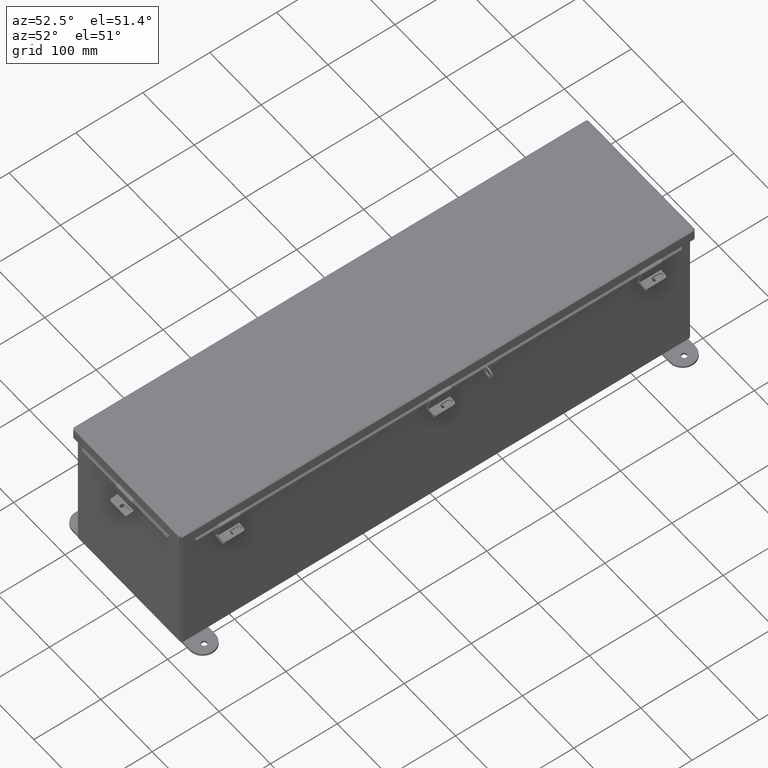
[diagram: clean part render]
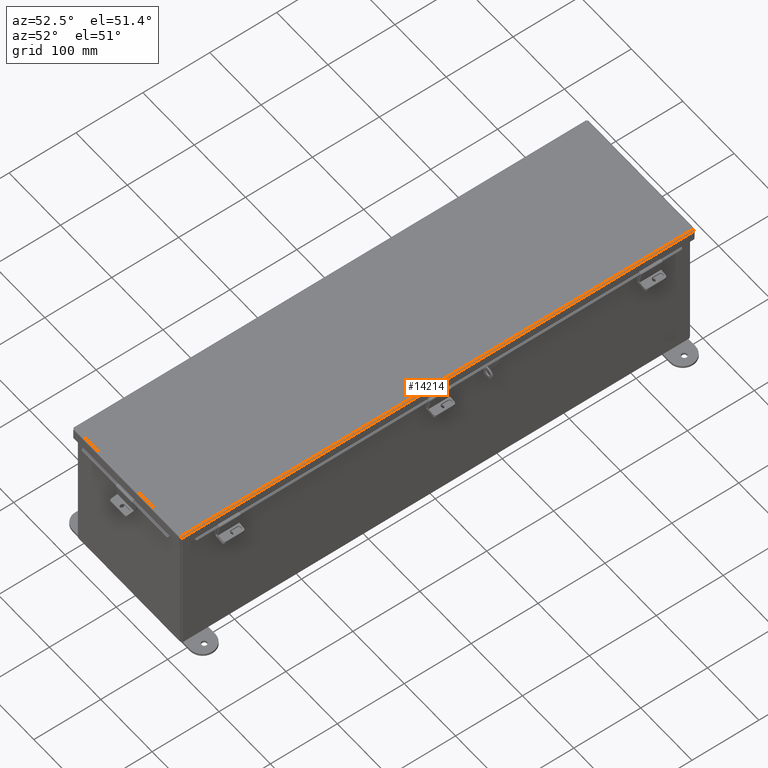
[diagram: same view with one face highlighted and labeled with its STEP entity id]
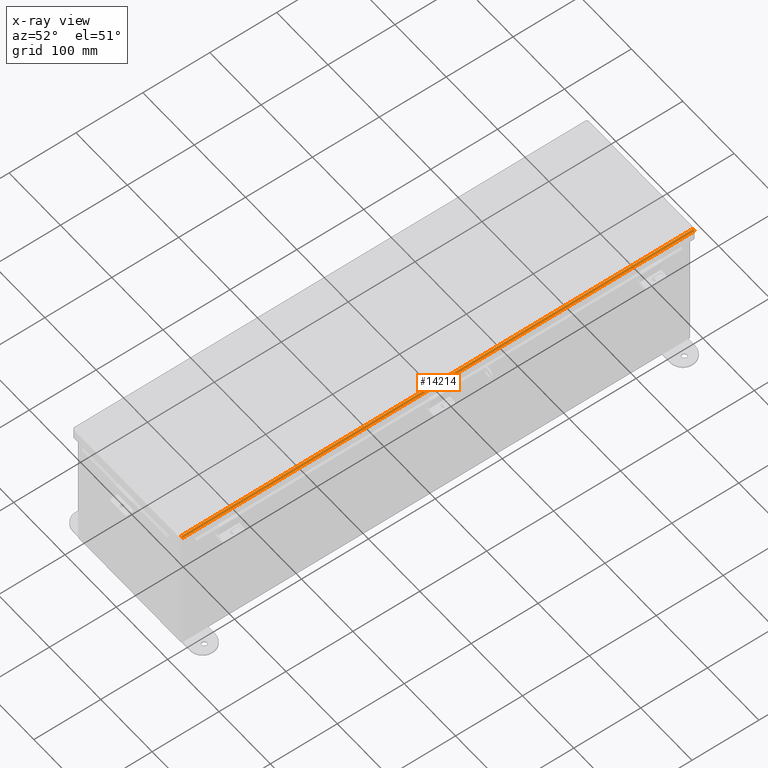
[diagram: x-ray of the same camera — body ghosted, the highlighted face saturated]
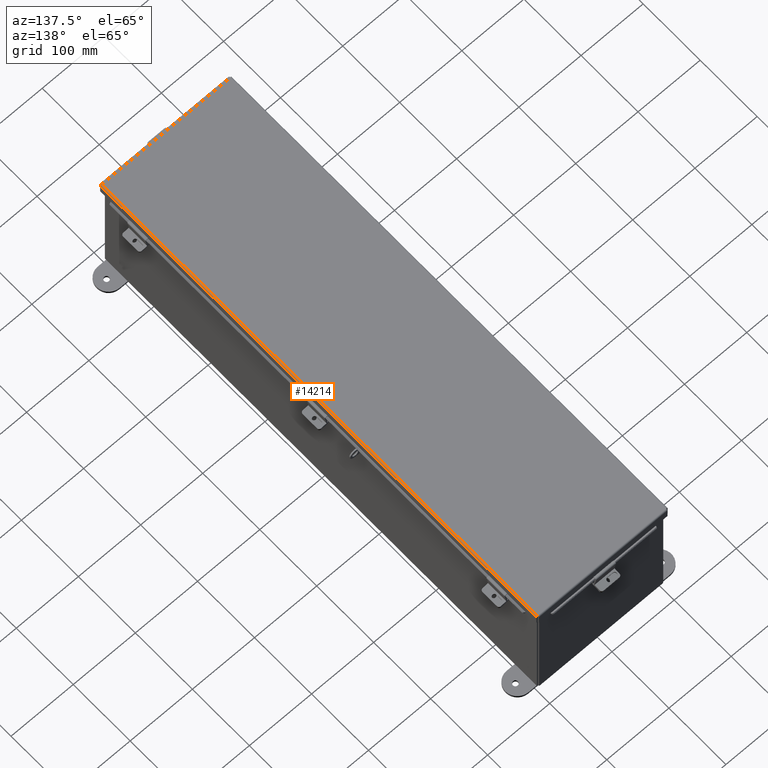
[diagram: same view with one face highlighted and labeled with its STEP entity id]
A machine part, auxiliary view. The second image highlights one B-rep face of the part: STEP entity #14214.
The next image is the same camera in x-ray: the body ghosted, the highlighted face saturated — about 0% of this face is hidden behind the body in this view.
A second angle (auxiliary view) of the same face is appended — the face is thin or edge-on in the first view.
In plain terms, the highlighted cylindrical surface (edge-blend (fillet) strip) has radius 2.2276 mm, axis along (-0, -1, -0).
Its self-contained STEP definition (entity closure, byte-faithful):
#343 = EDGE_LOOP ( 'NONE', ( #20502, #17412, #14173, #10506 ) ) ;
#665 = CARTESIAN_POINT ( 'NONE',  ( -4.156250000000025800, 15.15624999999997200, 0.01299999999999901400 ) ) ;
#1587 = CARTESIAN_POINT ( 'NONE',  ( -4.156250000000025800, 15.07447893218810500, 0.01299999999999901400 ) ) ;
#1892 = CARTESIAN_POINT ( 'NONE',  ( -4.153967403743838100, 15.07349077682342100, -0.009955289458307625300 ) ) ;
#2747 = CARTESIAN_POINT ( 'NONE',  ( -4.068550000000025000, -15.07447893218816200, -0.07470000000000015500 ) ) ;
#2799 = VERTEX_POINT ( 'NONE', #21058 ) ;
#3228 = CYLINDRICAL_SURFACE ( 'NONE', #19275, 0.08770000000000026400 ) ;
#3342 = CARTESIAN_POINT ( 'NONE',  ( -4.112717384578552100, -15.07052631072940600, -0.06363106625866903100 ) ) ;
#3868 = CARTESIAN_POINT ( 'NONE',  ( -4.145181066258694500, 15.07250262145873200, -0.03116738457852710100 ) ) ;
#4325 = CARTESIAN_POINT ( 'NONE',  ( -4.156250000000025800, -15.07447893218816200, 0.01299999999999901400 ) ) ;
#6443 = FACE_OUTER_BOUND ( 'NONE', #343, .T. ) ;
#6657 = CARTESIAN_POINT ( 'NONE',  ( -4.068550000000025000, -15.06855000000002700, -0.07470000000000015500 ) ) ;
#7584 = VERTEX_POINT ( 'NONE', #20574 ) ;
#10506 = ORIENTED_EDGE ( 'NONE', *, *, #15337, .F. ) ;
#10568 = CARTESIAN_POINT ( 'NONE',  ( -4.138680782078345100, -15.07200854377643900, -0.04089574734180118100 ) ) ;
#10998 = DIRECTION ( 'NONE',  ( -1.235011063668327700E-029, -1.000000000000000000, -6.034785924940740300E-029 ) ) ;
#11125 = CARTESIAN_POINT ( 'NONE',  ( -4.153967403743836300, -15.07349077682347100, -0.009955289458310603900 ) ) ;
#11807 = CARTESIAN_POINT ( 'NONE',  ( -4.080029903155018000, -15.06904407768237100, -0.07470000000000036300 ) ) ;
#11840 = DIRECTION ( 'NONE',  ( -1.000000000000000000, 0.0000000000000000000, -3.577373637655407700E-015 ) ) ;
#11895 = CARTESIAN_POINT ( 'NONE',  ( -4.068550000000025000, -15.06855000000002700, -0.07470000000000015500 ) ) ;
#12501 = VERTEX_POINT ( 'NONE', #6657 ) ;
#13316 = EDGE_CURVE ( 'NONE', #13647, #2799, #24766, .T. ) ;
#13564 = B_SPLINE_CURVE_WITH_KNOTS ( 'NONE', 3,
 ( #4325, #20770, #11125, #17027, #10568, #18089, #3342, #16847, #11807, #11895 ),
 .UNSPECIFIED., .F., .F.,
 ( 4, 2, 2, 2, 4 ),
 ( 0.0000000000000000000, 0.2500000000000000000, 0.5000000000000000000, 0.7500000000000000000, 1.000000000000000000 ),
 .UNSPECIFIED. ) ;
#13647 = VERTEX_POINT ( 'NONE', #24333 ) ;
#14173 = ORIENTED_EDGE ( 'NONE', *, *, #13316, .T. ) ;
#14214 = ADVANCED_FACE ( 'NONE', ( #6443 ), #3228, .T. ) ;
#14631 = B_SPLINE_CURVE_WITH_KNOTS ( 'NONE', 3,
 ( #20098, #16620, #19633, #14677, #17953, #19251, #3868, #1892, #15688, #1587 ),
 .UNSPECIFIED., .F., .F.,
 ( 4, 2, 2, 2, 4 ),
 ( 0.0000000000000000000, 0.2500000000000000000, 0.5000000000000000000, 0.7500000000000000000, 1.000000000000000000 ),
 .UNSPECIFIED. ) ;
#14677 = CARTESIAN_POINT ( 'NONE',  ( -4.112717384578553000, 15.07052631072934900, -0.06363106625866843400 ) ) ;
#14913 = EDGE_CURVE ( 'NONE', #12501, #7584, #22816, .T. ) ;
#15337 = EDGE_CURVE ( 'NONE', #7584, #2799, #14631, .T. ) ;
#15584 = EDGE_CURVE ( 'NONE', #13647, #12501, #13564, .T. ) ;
#15688 = CARTESIAN_POINT ( 'NONE',  ( -4.156250000000026600, 15.07398485450576200, 0.001520096845008771400 ) ) ;
#16620 = CARTESIAN_POINT ( 'NONE',  ( -4.080029903155018000, 15.06904407768231600, -0.07470000000000034900 ) ) ;
#16759 = VECTOR ( 'NONE', #22715, 39.37007874015748100 ) ;
#16847 = CARTESIAN_POINT ( 'NONE',  ( -4.091505289458334400, -15.06953815536471500, -0.07241740374381165600 ) ) ;
#17027 = CARTESIAN_POINT ( 'NONE',  ( -4.145181066258693600, -15.07250262145878100, -0.03116738457852922400 ) ) ;
#17412 = ORIENTED_EDGE ( 'NONE', *, *, #15584, .F. ) ;
#17477 = VECTOR ( 'NONE', #20269, 39.37007874015748100 ) ;
#17953 = CARTESIAN_POINT ( 'NONE',  ( -4.122445747341825700, 15.07102038841169500, -0.05713078207832027200 ) ) ;
#18089 = CARTESIAN_POINT ( 'NONE',  ( -4.122445747341824800, -15.07102038841175000, -0.05713078207832117400 ) ) ;
#19251 = CARTESIAN_POINT ( 'NONE',  ( -4.138680782078346000, 15.07200854377638200, -0.04089574734179948800 ) ) ;
#19275 = AXIS2_PLACEMENT_3D ( 'NONE', #23708, #10998, #11840 ) ;
#19633 = CARTESIAN_POINT ( 'NONE',  ( -4.091505289458334400, 15.06953815536466300, -0.07241740374381154500 ) ) ;
#20098 = CARTESIAN_POINT ( 'NONE',  ( -4.068550000000025900, 15.06854999999997000, -0.07470000000000015500 ) ) ;
#20269 = DIRECTION ( 'NONE',  ( 1.235011063668327800E-029, 1.000000000000000000, 6.034785924940740300E-029 ) ) ;
#20502 = ORIENTED_EDGE ( 'NONE', *, *, #14913, .F. ) ;
#20574 = CARTESIAN_POINT ( 'NONE',  ( -4.068550000000025900, 15.06854999999997000, -0.07470000000000015500 ) ) ;
#20770 = CARTESIAN_POINT ( 'NONE',  ( -4.156250000000024900, -15.07398485450581700, 0.001520096845005389300 ) ) ;
#21058 = CARTESIAN_POINT ( 'NONE',  ( -4.156250000000025800, 15.07447893218810500, 0.01299999999999901400 ) ) ;
#22715 = DIRECTION ( 'NONE',  ( 1.223616637389996300E-029, 1.000000000000000000, 1.802456408196888900E-017 ) ) ;
#22816 = LINE ( 'NONE', #2747, #17477 ) ;
#23708 = CARTESIAN_POINT ( 'NONE',  ( -4.068550000000025000, -15.07447893218816200, 0.01300000000000010700 ) ) ;
#24333 = CARTESIAN_POINT ( 'NONE',  ( -4.156250000000025800, -15.07447893218816200, 0.01299999999999901400 ) ) ;
#24766 = LINE ( 'NONE', #665, #16759 ) ;